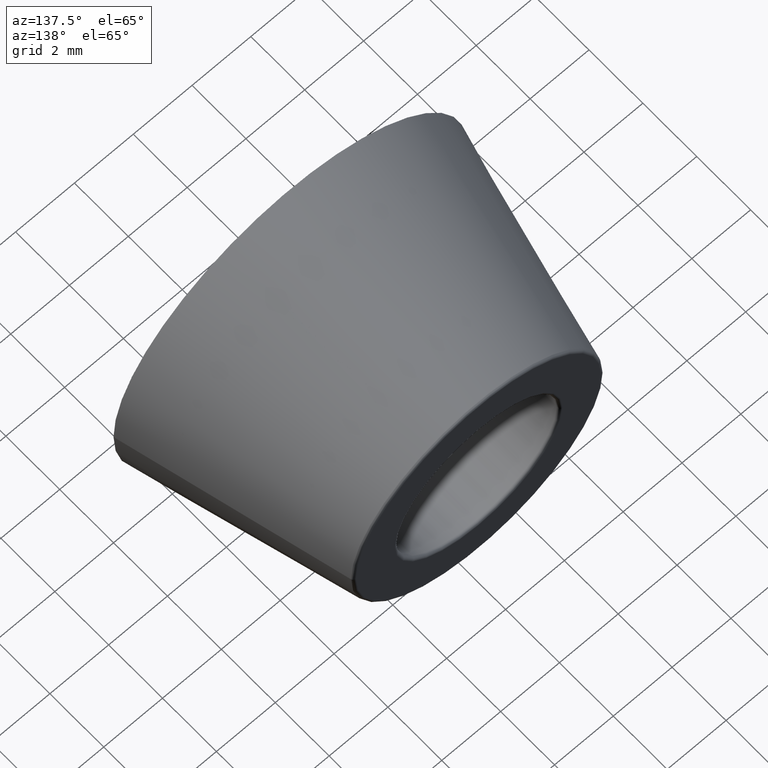
[diagram: clean part render]
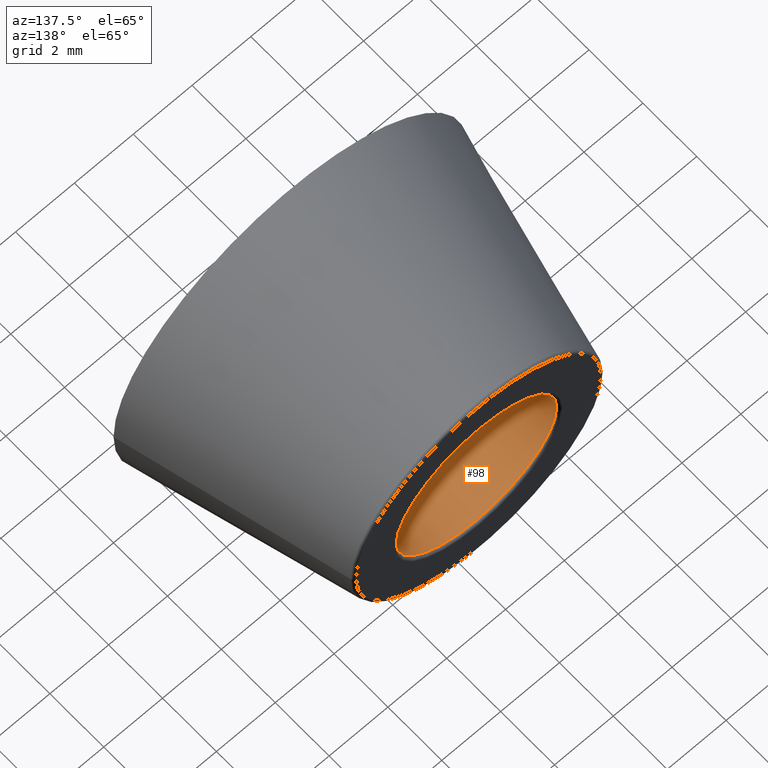
[diagram: same view with one face highlighted and labeled with its STEP entity id]
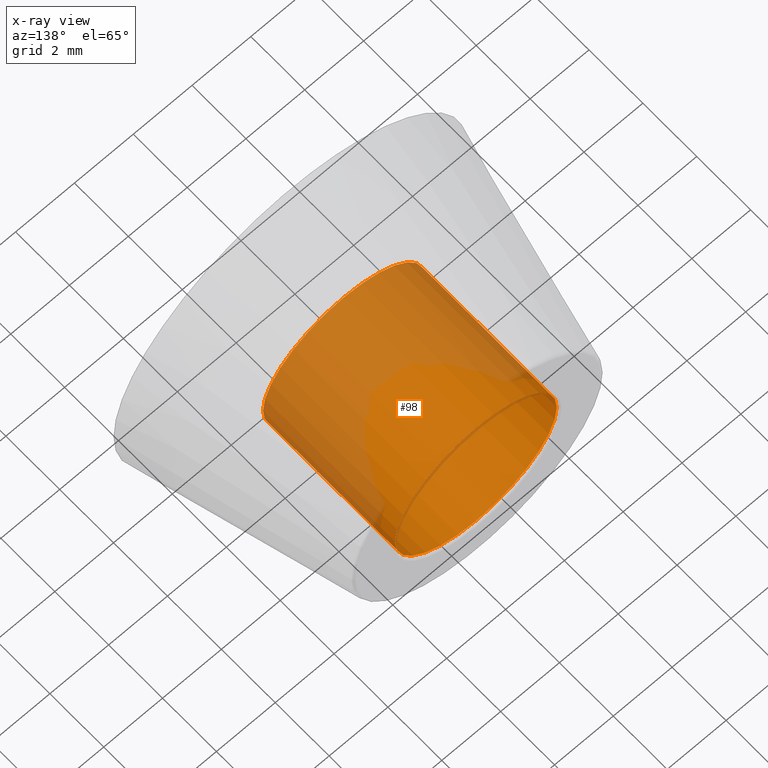
[diagram: x-ray of the same camera — body ghosted, the highlighted face saturated]
A machine part, auxiliary view. The second image highlights one B-rep face of the part: STEP entity #98.
The next image is the same camera in x-ray: the body ghosted, the highlighted face saturated — about 52% of this face is hidden behind the body in this view.
In plain terms, the highlighted cylindrical surface (bore or boss wall) has radius 2.75 mm, axis along (0, -1, 0).
Its self-contained STEP definition (entity closure, byte-faithful):
#16=CYLINDRICAL_SURFACE('',#112,2.75);
#24=FACE_BOUND('',#43,.T.);
#31=FACE_OUTER_BOUND('',#42,.T.);
#42=EDGE_LOOP('',(#82));
#43=EDGE_LOOP('',(#83));
#54=CIRCLE('',#108,2.75);
#57=CIRCLE('',#113,2.75);
#62=VERTEX_POINT('',#162);
#65=VERTEX_POINT('',#170);
#70=EDGE_CURVE('',#62,#62,#54,.T.);
#73=EDGE_CURVE('',#65,#65,#57,.T.);
#82=ORIENTED_EDGE('',*,*,#73,.T.);
#83=ORIENTED_EDGE('',*,*,#70,.F.);
#98=ADVANCED_FACE('',(#31,#24),#16,.F.);
#108=AXIS2_PLACEMENT_3D('',#163,#128,#129);
#112=AXIS2_PLACEMENT_3D('',#169,#136,#137);
#113=AXIS2_PLACEMENT_3D('',#171,#138,#139);
#128=DIRECTION('center_axis',(0.,-1.,0.));
#129=DIRECTION('ref_axis',(-1.,0.,0.));
#136=DIRECTION('center_axis',(0.,-1.,0.));
#137=DIRECTION('ref_axis',(-1.,0.,0.));
#138=DIRECTION('center_axis',(0.,-1.,0.));
#139=DIRECTION('ref_axis',(-1.,0.,0.));
#162=CARTESIAN_POINT('',(2.75,6.9,3.36777869765522E-16));
#163=CARTESIAN_POINT('Origin',(0.,6.9,0.));
#169=CARTESIAN_POINT('Origin',(0.,7.,0.));
#170=CARTESIAN_POINT('',(2.75,2.,-3.36777869765522E-16));
#171=CARTESIAN_POINT('Origin',(0.,2.,0.));